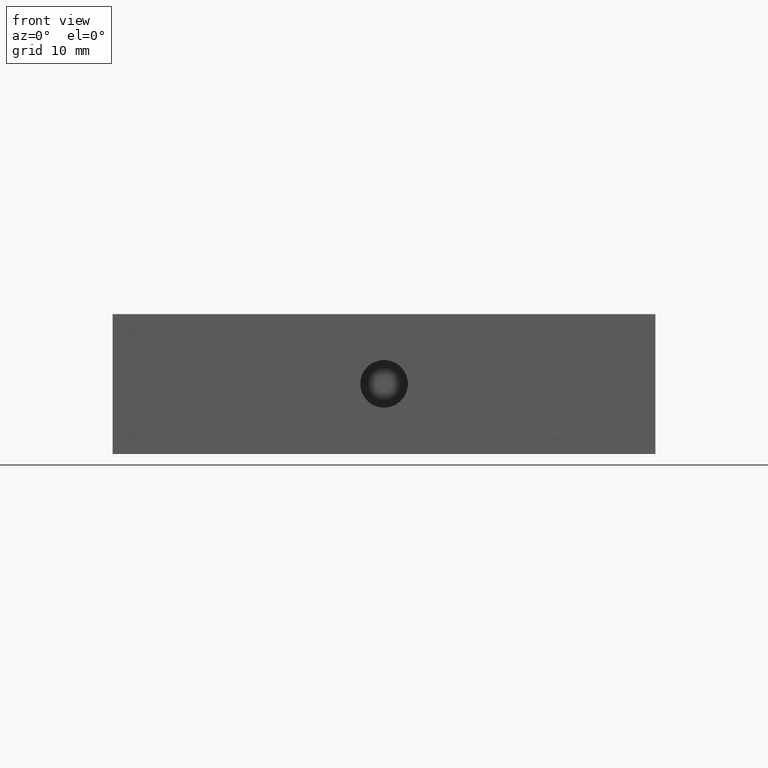
[diagram: clean part render]
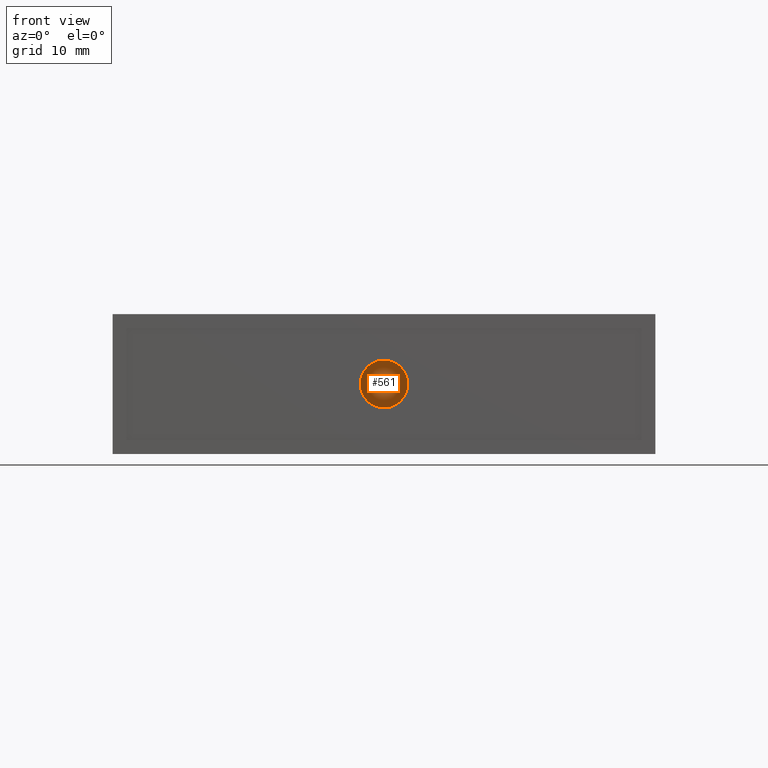
[diagram: same view with one face highlighted and labeled with its STEP entity id]
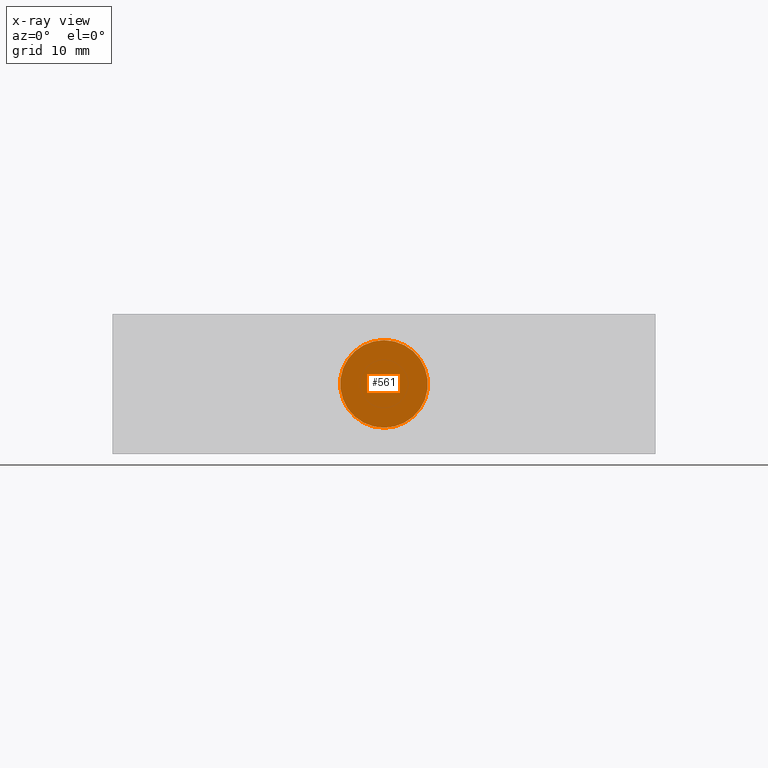
[diagram: x-ray of the same camera — body ghosted, the highlighted face saturated]
A machine part, front view. The second image highlights one B-rep face of the part: STEP entity #561.
The next image is the same camera in x-ray: the body ghosted, the highlighted face saturated — about 0% of this face is hidden behind the body in this view.
In plain terms, the highlighted planar face has unit normal (0, -1, -0).
Its self-contained STEP definition (entity closure, byte-faithful):
#21 = VERTEX_POINT ( 'NONE', #383 ) ;
#47 = EDGE_CURVE ( 'NONE', #21, #48, #882, .T. ) ;
#48 = VERTEX_POINT ( 'NONE', #877 ) ;
#383 = CARTESIAN_POINT ( 'NONE',  ( 2.877824931482587200E-017, -0.9940944881889765000, 0.1400000000000000100 ) ) ;
#561 = ADVANCED_FACE ( 'NONE', ( #1667 ), #1680, .T. ) ;
#562 = EDGE_LOOP ( 'NONE', ( #564, #566 ) ) ;
#564 = ORIENTED_EDGE ( 'NONE', *, *, #565, .F. ) ;
#565 = EDGE_CURVE ( 'NONE', #48, #21, #1693, .T. ) ;
#566 = ORIENTED_EDGE ( 'NONE', *, *, #47, .F. ) ;
#877 = CARTESIAN_POINT ( 'NONE',  ( 0.0000000000000000000, -0.9940944881889765000, 0.6100000000000002100 ) ) ;
#878 = DIRECTION ( 'NONE',  ( 0.0000000000000000000, 0.0000000000000000000, 1.000000000000000000 ) ) ;
#879 = DIRECTION ( 'NONE',  ( -0.0000000000000000000, 1.000000000000000000, 1.018617520532313100E-016 ) ) ;
#880 = CARTESIAN_POINT ( 'NONE',  ( 0.0000000000000000000, -0.9940944881889765000, 0.3750000000000001100 ) ) ;
#881 = AXIS2_PLACEMENT_3D ( 'NONE', #880, #879, #878 ) ;
#882 = CIRCLE ( 'NONE', #881, 0.2350000000000001000 ) ;
#1667 = FACE_OUTER_BOUND ( 'NONE', #562, .T. ) ;
#1676 = DIRECTION ( 'NONE',  ( 0.0000000000000000000, 0.0000000000000000000, 1.000000000000000000 ) ) ;
#1677 = DIRECTION ( 'NONE',  ( -0.0000000000000000000, 1.000000000000000000, 1.018617520532313100E-016 ) ) ;
#1678 = CARTESIAN_POINT ( 'NONE',  ( 0.0000000000000000000, -0.9940944881889765000, 0.3750000000000001100 ) ) ;
#1679 = AXIS2_PLACEMENT_3D ( 'NONE', #1678, #1677, #1676 ) ;
#1680 = PLANE ( 'NONE',  #1692 ) ;
#1689 = DIRECTION ( 'NONE',  ( 0.0000000000000000000, 1.018617520532313100E-016, -1.000000000000000000 ) ) ;
#1690 = DIRECTION ( 'NONE',  ( 0.0000000000000000000, -1.000000000000000000, -1.018617520532313100E-016 ) ) ;
#1691 = CARTESIAN_POINT ( 'NONE',  ( -1.531521134842864500E-016, -0.9940944881889765000, 0.3750000000000001100 ) ) ;
#1692 = AXIS2_PLACEMENT_3D ( 'NONE', #1691, #1690, #1689 ) ;
#1693 = CIRCLE ( 'NONE', #1679, 0.2350000000000001000 ) ;